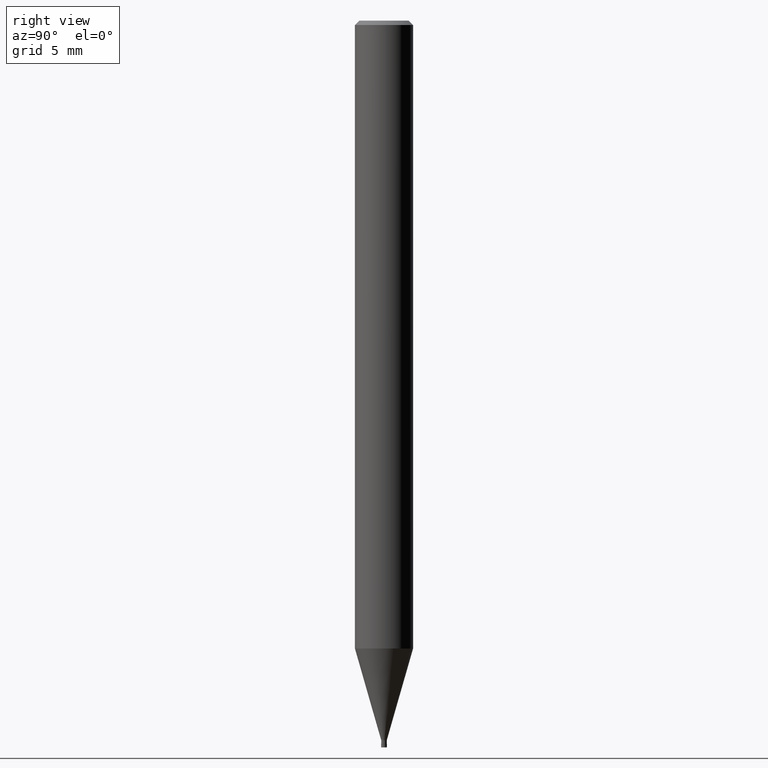
[diagram: clean part render]
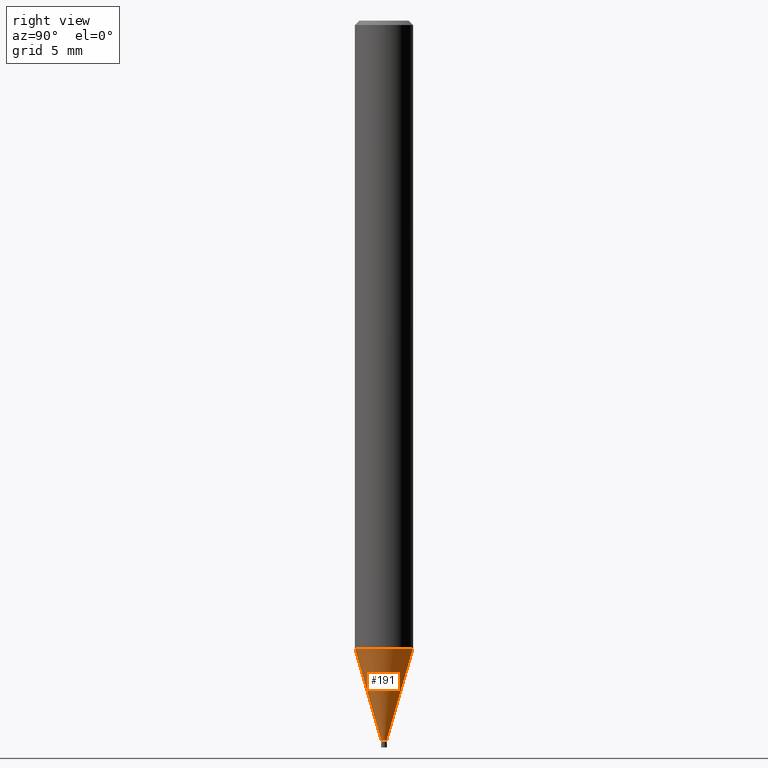
[diagram: same view with one face highlighted and labeled with its STEP entity id]
A machine part, right view. The second image highlights one B-rep face of the part: STEP entity #191.
In plain terms, the highlighted conical surface has half-angle 15.999 deg.
Its self-contained STEP definition (entity closure, byte-faithful):
#191=ADVANCED_FACE('',(#432),#433,.T.);
#193=VERTEX_POINT('',#435);
#219=EDGE_CURVE('',#271,#193,#464,.T.);
#221=EDGE_CURVE('',#337,#193,#466,.T.);
#271=VERTEX_POINT('',#522);
#293=EDGE_CURVE('',#303,#337,#549,.T.);
#303=VERTEX_POINT('',#559);
#337=VERTEX_POINT('',#596);
#349=EDGE_CURVE('',#271,#303,#609,.T.);
#432=FACE_OUTER_BOUND('',#701,.T.);
#433=CONICAL_SURFACE('',#702,1.0962,0.279231732547063);
#435=CARTESIAN_POINT('',(2.44915147732706E-016,-1.99995,-43.186));
#464=CIRCLE('',#744,1.99995);
#466=LINE('',#747,#748);
#522=CARTESIAN_POINT('',(0.0,1.99995,-43.186));
#549=CIRCLE('',#851,0.19245);
#559=CARTESIAN_POINT('',(0.0,0.19245,-49.49));
#596=CARTESIAN_POINT('',(2.35675492793117E-017,-0.19245,-49.49));
#609=LINE('',#931,#932);
#701=EDGE_LOOP('',(#1015,#1016,#1017,#1018));
#702=AXIS2_PLACEMENT_3D('',#1019,#1020,#1021);
#744=AXIS2_PLACEMENT_3D('',#1061,#1062,#1063);
#747=CARTESIAN_POINT('',(1.34241348506009E-016,-1.0962,-46.338));
#748=VECTOR('',#1064,1.0);
#851=AXIS2_PLACEMENT_3D('',#1174,#1175,#1176);
#931=CARTESIAN_POINT('',(-1.34241348506009E-016,1.0962,-46.338));
#932=VECTOR('',#1240,1.0);
#1015=ORIENTED_EDGE('',*,*,#349,.F.);
#1016=ORIENTED_EDGE('',*,*,#219,.T.);
#1017=ORIENTED_EDGE('',*,*,#221,.F.);
#1018=ORIENTED_EDGE('',*,*,#293,.F.);
#1019=CARTESIAN_POINT('',(0.0,0.0,-46.338));
#1020=DIRECTION('',(-0.0,-0.0,1.0));
#1021=DIRECTION('',(0.0,1.0,0.0));
#1061=CARTESIAN_POINT('',(0.0,0.0,-43.186));
#1062=DIRECTION('',(0.0,0.0,-1.0));
#1063=DIRECTION('',(0.0,1.0,0.0));
#1064=DIRECTION('',(3.375225981805E-017,-0.275617219465657,0.961267469715906));
#1174=CARTESIAN_POINT('',(0.0,0.0,-49.49));
#1175=DIRECTION('',(0.0,0.0,-1.0));
#1176=DIRECTION('',(0.0,1.0,0.0));
#1240=DIRECTION('',(3.375225981805E-017,-0.275617219465657,-0.961267469715906));